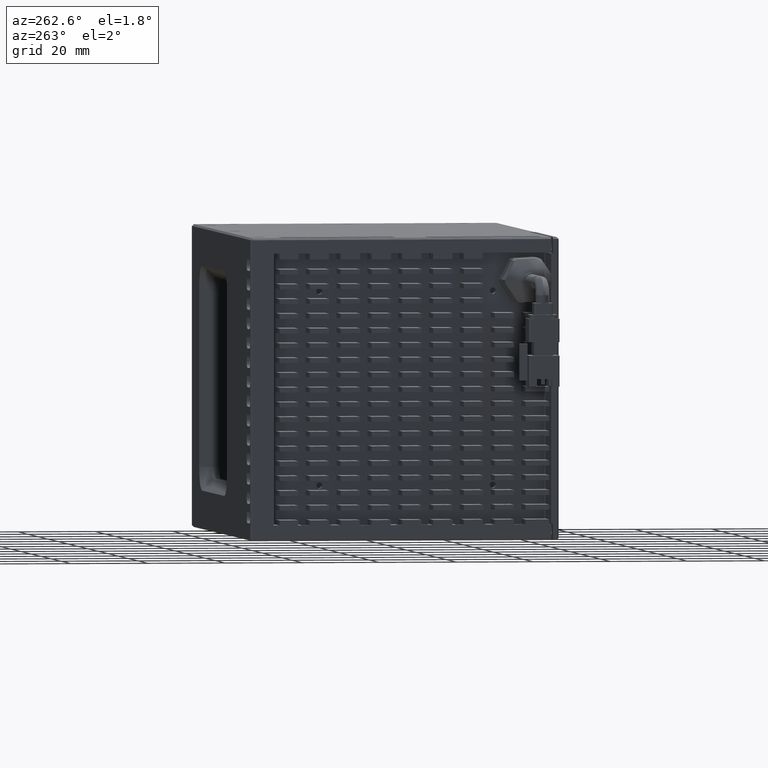
[diagram: clean part render]
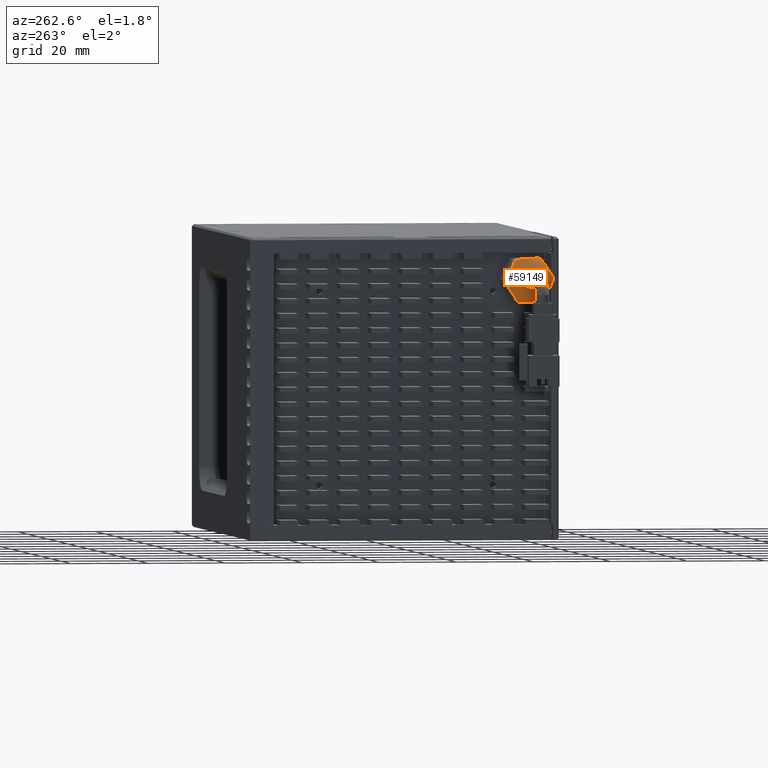
[diagram: same view with one face highlighted and labeled with its STEP entity id]
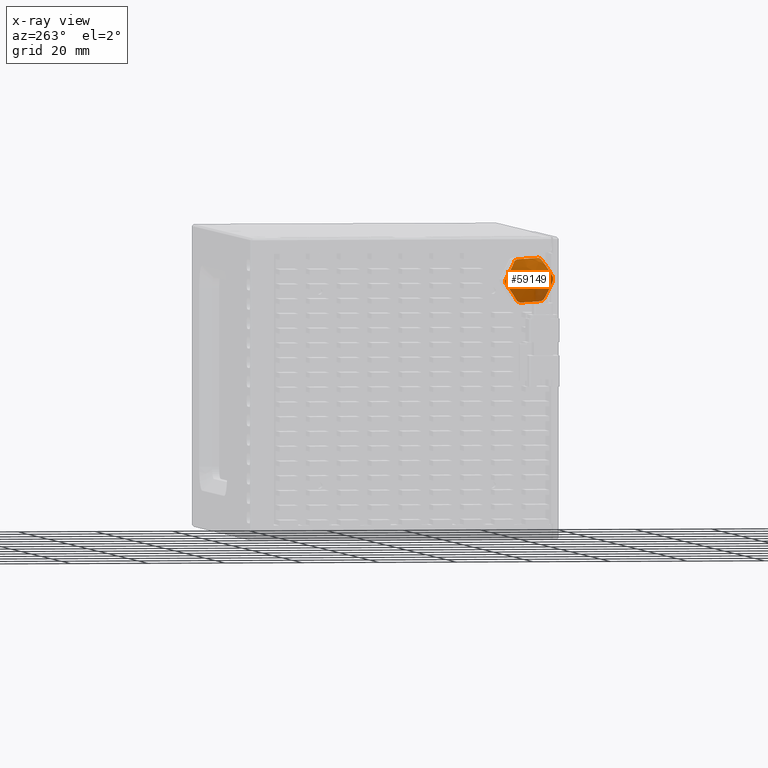
[diagram: x-ray of the same camera — body ghosted, the highlighted face saturated]
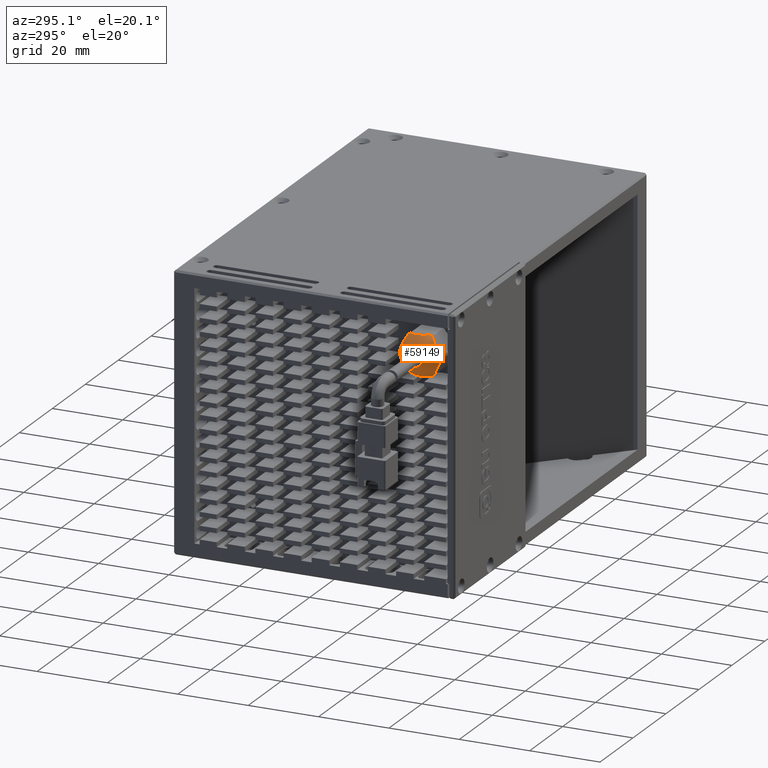
[diagram: same view with one face highlighted and labeled with its STEP entity id]
A machine part, auxiliary view. The second image highlights one B-rep face of the part: STEP entity #59149.
The next image is the same camera in x-ray: the body ghosted, the highlighted face saturated — about 17% of this face is hidden behind the body in this view.
A second angle (auxiliary view) of the same face is appended — the face is thin or edge-on in the first view.
In plain terms, the highlighted face is a freeform B-spline surface patch.
Its self-contained STEP definition (entity closure, byte-faithful):
#215 = EDGE_CURVE ( 'NONE', #26231, #26221, #32173, .T. ) ;
#708 = CARTESIAN_POINT ( 'NONE',  ( -75.85005730159738800, -9.818089248277848600, 67.00000000000957800 ) ) ;
#1711 = DIRECTION ( 'NONE',  ( 0.0000000000000000000, -0.4439600393527282100, 0.8960465855400174800 ) ) ;
#2053 = CARTESIAN_POINT ( 'NONE',  ( -76.65690864948534500, -15.02473585776141000, 69.28411995864213700 ) ) ;
#2189 = CARTESIAN_POINT ( 'NONE',  ( -75.85005730159738800, -9.818089248277848600, 67.00000000000957800 ) ) ;
#2219 = CARTESIAN_POINT ( 'NONE',  ( -75.85005730159738800, -16.06808921387633400, 67.00065575452337900 ) ) ;
#2271 = CARTESIAN_POINT ( 'NONE',  ( -76.75422238075439900, -4.691938422272225600, 69.26761412325878100 ) ) ;
#2654 = CARTESIAN_POINT ( 'NONE',  ( -74.10379265457416400, -9.826900781596521000, 74.02239375570948700 ) ) ;
#2886 = CARTESIAN_POINT ( 'NONE',  ( -83.06947262256238700, -14.42831988906798600, 68.19498467567795800 ) ) ;
#3864 = CARTESIAN_POINT ( 'NONE',  ( -75.99697512316309700, -6.581963477400106100, 61.75485134791938400 ) ) ;
#4051 = CARTESIAN_POINT ( 'NONE',  ( -75.85005730159738800, -12.23197978238103200, 72.76503534156312000 ) ) ;
#4282 = CARTESIAN_POINT ( 'NONE',  ( -76.35171132334807000, -7.544889998957438900, 72.46660227885695300 ) ) ;
#4452 = CARTESIAN_POINT ( 'NONE',  ( -76.65690864948533100, -14.39951846248703200, 63.63297174698492900 ) ) ;
#4470 =( BOUNDED_SURFACE ( )  B_SPLINE_SURFACE ( 3, 3, ( 
 ( #2654, #24749, #63193, #30274 ),
 ( #68746, #35811, #2886, #41337 ),
 ( #8462, #46816, #13964, #52382 ),
 ( #19442, #57915, #24989, #63451 ) ),
 .UNSPECIFIED., .F., .F., .F. ) 
 B_SPLINE_SURFACE_WITH_KNOTS ( ( 4, 4 ),
 ( 4, 4 ),
 ( 0.0000000000000000000, 1.000000000000000000 ),
 ( 0.0000000000000000000, 1.000000000000000000 ),
 .UNSPECIFIED. ) 
 GEOMETRIC_REPRESENTATION_ITEM ( )  RATIONAL_B_SPLINE_SURFACE ( (
 ( 1.000000000000000000, 0.7017694484579010100, 0.7017694484579010100, 1.000000000000000000),
 ( 0.6732171387617810200, 0.4724432201612612800, 0.4724432201612612800, 0.6732171387617810200),
 ( 0.6732171387617810200, 0.4724432201612612800, 0.4724432201612612800, 0.6732171387617810200),
 ( 1.000000000000000000, 0.7017694484579010100, 0.7017694484579010100, 1.000000000000000000) ) ) 
 REPRESENTATION_ITEM ( '' )  SURFACE ( )  );
#4862 = CARTESIAN_POINT ( 'NONE',  ( -76.65690864948517500, -9.192871853003591600, 61.34885178835138900 ) ) ;
#4908 = CARTESIAN_POINT ( 'NONE',  ( -75.85005730159738800, -16.01770157482995700, 67.79202714629809600 ) ) ;
#5591 = DIRECTION ( 'NONE',  ( 1.000000000000000000, -4.890937612370272100E-029, 2.051038353574630100E-029 ) ) ;
#6216 = DIRECTION ( 'NONE',  ( 0.0000000000000000000, 0.4439600393527282600, -0.8960465855400175900 ) ) ;
#6753 = EDGE_CURVE ( 'NONE', #22023, #24756, #29705, .T. ) ;
#7628 = CARTESIAN_POINT ( 'NONE',  ( -76.75381554869540000, -14.61953330542437800, 69.89300282890923200 ) ) ;
#7752 = DIRECTION ( 'NONE',  ( 0.0000000000000000000, 0.4439600393527247100, -0.8960465855400193700 ) ) ;
#7838 = CARTESIAN_POINT ( 'NONE',  ( -76.65755512417865700, -4.365118107905129100, 68.60799118241770600 ) ) ;
#7942 = EDGE_CURVE ( 'NONE', #52637, #41928, #13082, .T. ) ;
#8462 = CARTESIAN_POINT ( 'NONE',  ( -77.06815567162966800, -1.641939032934806300, 67.57180493125960700 ) ) ;
#8508 = CARTESIAN_POINT ( 'NONE',  ( -76.73419157656655900, -4.880704344993992200, 64.31127044654826400 ) ) ;
#9090 = CARTESIAN_POINT ( 'NONE',  ( -79.08198799589982300, -10.70600932698303300, 68.79209317108907800 ) ) ;
#9643 = CARTESIAN_POINT ( 'NONE',  ( -76.14389294472799500, -11.82958220444041500, 72.73941416783715400 ) ) ;
#9882 = CARTESIAN_POINT ( 'NONE',  ( -75.99697512316277000, -6.893720154380086600, 72.42514145347522000 ) ) ;
#10044 = CARTESIAN_POINT ( 'NONE',  ( -76.75381554869528600, -14.72422521989893000, 64.28832888612045300 ) ) ;
#10452 = CARTESIAN_POINT ( 'NONE',  ( -76.75381554869521500, -9.922781162752153600, 61.39532605722008200 ) ) ;
#10616 = CARTESIAN_POINT ( 'NONE',  ( -76.44769987294914400, -6.092057095767582800, 62.49101552578586200 ) ) ;
#11618 = VERTEX_POINT ( 'NONE', #2219 ) ;
#11688 = VERTEX_POINT ( 'NONE', #64482 ) ;
#11767 = VERTEX_POINT ( 'NONE', #31966 ) ;
#12898 = CARTESIAN_POINT ( 'NONE',  ( -76.14389294472809400, -15.79431419853827400, 68.12770308435284500 ) ) ;
#13061 = AXIS2_PLACEMENT_3D ( 'NONE', #19873, #58352, #25402 ) ;
#13082 = CIRCLE ( 'NONE', #18562, 6.249999999999515900 ) ;
#13113 = CARTESIAN_POINT ( 'NONE',  ( -76.14389294472803700, -5.853357254179398300, 71.61171108349331900 ) ) ;
#13134 = CARTESIAN_POINT ( 'NONE',  ( -76.73457749291901600, -14.20670485234773000, 70.51334485782166400 ) ) ;
#13355 = CARTESIAN_POINT ( 'NONE',  ( -76.44769987294911600, -4.050178072075575600, 67.97234626228846800 ) ) ;
#13964 = CARTESIAN_POINT ( 'NONE',  ( -83.06947262256262800, -11.66021118308860100, 62.60809816667423200 ) ) ;
#14402 = AXIS2_PLACEMENT_3D ( 'NONE', #53559, #20642, #59094 ) ;
#14967 = CARTESIAN_POINT ( 'NONE',  ( -76.36751272167669000, -4.084576890544851400, 65.50758169080775400 ) ) ;
#15156 = CARTESIAN_POINT ( 'NONE',  ( -76.59876150532829800, -10.68490941831014900, 72.66653137251083200 ) ) ;
#15271 = CARTESIAN_POINT ( 'NONE',  ( -75.85005730159738800, -3.568089282679255200, 66.99934424549553600 ) ) ;
#15544 = CARTESIAN_POINT ( 'NONE',  ( -76.73457749291890200, -15.05504294943386500, 64.95601982834591600 ) ) ;
#15953 = CARTESIAN_POINT ( 'NONE',  ( -76.73457749291877400, -10.66642734536347200, 61.44267497053317600 ) ) ;
#16018 = CARTESIAN_POINT ( 'NONE',  ( -75.85005730159738800, -13.60381104072746800, 62.02699180474505200 ) ) ;
#16225 = VERTEX_POINT ( 'NONE', #15271 ) ;
#16390 = FACE_BOUND ( 'NONE', #32937, .T. ) ;
#17495 = EDGE_CURVE ( 'NONE', #22023, #11618, #28082, .T. ) ;
#17994 = CIRCLE ( 'NONE', #52496, 1.999999999999998400 ) ;
#18460 = AXIS2_PLACEMENT_3D ( 'NONE', #24850, #63295, #30372 ) ;
#18486 = ORIENTED_EDGE ( 'NONE', *, *, #215, .T. ) ;
#18562 = AXIS2_PLACEMENT_3D ( 'NONE', #38481, #5591, #44041 ) ;
#18603 = CARTESIAN_POINT ( 'NONE',  ( -76.60025685661698000, -13.80461005402773400, 71.11755782121119300 ) ) ;
#18824 = CARTESIAN_POINT ( 'NONE',  ( -76.12654354366910100, -3.751368091434554000, 67.36925670659553600 ) ) ;
#18912 = CIRCLE ( 'NONE', #36816, 6.249999999999514200 ) ;
#19396 = EDGE_CURVE ( 'NONE', #61492, #16225, #66838, .T. ) ;
#19442 = CARTESIAN_POINT ( 'NONE',  ( -74.10379265457440600, -4.236286113132960600, 62.73883050517483900 ) ) ;
#19873 = CARTESIAN_POINT ( 'NONE',  ( -75.85005730159738800, -9.818089248277848600, 67.00000000000957800 ) ) ;
#20343 = DIRECTION ( 'NONE',  ( 1.000000000000000000, -4.890937612370272100E-029, 2.051038353574630100E-029 ) ) ;
#20638 = CARTESIAN_POINT ( 'NONE',  ( -76.73419157656678600, -9.958273602716657200, 72.62026553124482600 ) ) ;
#20642 = DIRECTION ( 'NONE',  ( 1.000000000000000000, -4.890937612370272100E-029, 2.051038353574630100E-029 ) ) ;
#20981 = CARTESIAN_POINT ( 'NONE',  ( -76.14389294472830700, -7.806596292116029900, 61.26058583218100800 ) ) ;
#21049 = CARTESIAN_POINT ( 'NONE',  ( -76.60025685661689500, -15.37725932586498900, 65.60635062011520800 ) ) ;
#21073 = CARTESIAN_POINT ( 'NONE',  ( -75.85005730159738800, -12.94252133100853500, 72.41298662112708900 ) ) ;
#21460 = CARTESIAN_POINT ( 'NONE',  ( -76.60025685661690900, -11.39073852011430300, 61.48879279891314600 ) ) ;
#22009 = CARTESIAN_POINT ( 'NONE',  ( -75.85005730159738800, -7.043339002323511600, 61.39970884038490300 ) ) ;
#22023 = VERTEX_POINT ( 'NONE', #16018 ) ;
#22354 = CIRCLE ( 'NONE', #13061, 6.249999999999514200 ) ;
#22666 = ORIENTED_EDGE ( 'NONE', *, *, #62161, .T. ) ;
#24119 = CARTESIAN_POINT ( 'NONE',  ( -76.36751272167654700, -5.658860900570277700, 71.21915820011759000 ) ) ;
#24145 = CARTESIAN_POINT ( 'NONE',  ( -76.35171132334792800, -13.41570606948550700, 71.70194943720828500 ) ) ;
#24363 = CARTESIAN_POINT ( 'NONE',  ( -75.85005730159738800, -3.568089282679255200, 66.99934424549553600 ) ) ;
#24749 = CARTESIAN_POINT ( 'NONE',  ( -76.56586692776141900, -11.28983948597474900, 73.29755831160703400 ) ) ;
#24756 = VERTEX_POINT ( 'NONE', #62377 ) ;
#24850 = CARTESIAN_POINT ( 'NONE',  ( -75.85005730159738800, -9.818089248277848600, 67.00000000000957800 ) ) ;
#24883 = VERTEX_POINT ( 'NONE', #9090 ) ;
#24989 = CARTESIAN_POINT ( 'NONE',  ( -76.56586692776195900, -8.346339010580814800, 60.70244168841143300 ) ) ;
#25025 = CARTESIAN_POINT ( 'NONE',  ( -76.75422238075428500, -5.291202398560338700, 63.69443022268256300 ) ) ;
#25402 = DIRECTION ( 'NONE',  ( 0.0000000000000000000, 0.4439600393527282600, -0.8960465855400175900 ) ) ;
#25524 = AXIS2_PLACEMENT_3D ( 'NONE', #62574, #29652, #68140 ) ;
#26176 = CARTESIAN_POINT ( 'NONE',  ( -76.75422238075458400, -9.218825271989324200, 72.57318390058496500 ) ) ;
#26221 = VERTEX_POINT ( 'NONE', #65592 ) ;
#26231 = VERTEX_POINT ( 'NONE', #65849 ) ;
#26335 = CARTESIAN_POINT ( 'NONE',  ( -75.85005730159738800, -13.60381104072746800, 62.02699180474505200 ) ) ;
#26570 = CARTESIAN_POINT ( 'NONE',  ( -76.35171132334795600, -15.68890531880590100, 66.23534715836012800 ) ) ;
#26957 = CARTESIAN_POINT ( 'NONE',  ( -76.35171132334814100, -12.09128849759717100, 61.53339772116110100 ) ) ;
#27131 = CARTESIAN_POINT ( 'NONE',  ( -76.35171132334825500, -6.220472427068908200, 62.29805056281093600 ) ) ;
#27423 = EDGE_CURVE ( 'NONE', #24883, #11688, #34596, .T. ) ;
#27975 = EDGE_CURVE ( 'NONE', #35705, #11767, #22354, .T. ) ;
#28047 = ORIENTED_EDGE ( 'NONE', *, *, #17495, .T. ) ;
#28082 = B_SPLINE_CURVE_WITH_KNOTS ( 'NONE', 3,
 ( #26335, #64814, #70316, #37371, #4452, #42942, #10044, #48410, #15544, #53944, #21049, #59476, #26570, #65047, #32073, #70536 ),
 .UNSPECIFIED., .F., .F.,
 ( 4, 2, 2, 2, 2, 2, 2, 4 ),
 ( 3.659238710217230100E-016, 0.001475511169496675900, 0.002213266754244846900, 0.002951022338993018300, 0.003688777923741189700, 0.004426533508489360700, 0.005164289093237532100, 0.005902044677985703600 ),
 .UNSPECIFIED. ) ;
#29255 = FACE_OUTER_BOUND ( 'NONE', #54559, .T. ) ;
#29650 = CARTESIAN_POINT ( 'NONE',  ( -76.65690864948516000, -5.236660034068496100, 70.36702825303390800 ) ) ;
#29652 = DIRECTION ( 'NONE',  ( 1.000000000000000000, -4.890937612370272100E-029, 2.051038353574630100E-029 ) ) ;
#29677 = CARTESIAN_POINT ( 'NONE',  ( -75.99697512316265600, -13.05421501915442300, 72.24514865209964400 ) ) ;
#29705 = CIRCLE ( 'NONE', #18460, 6.249999999999516800 ) ;
#30274 = CARTESIAN_POINT ( 'NONE',  ( -74.10379265457416400, -15.39989238342211100, 71.26116949484385500 ) ) ;
#30372 = DIRECTION ( 'NONE',  ( 0.0000000000000000000, 0.4439600393527200500, -0.8960465855400215900 ) ) ;
#31210 = ORIENTED_EDGE ( 'NONE', *, *, #19396, .T. ) ;
#31269 = CARTESIAN_POINT ( 'NONE',  ( -76.65690864948511800, -4.611442638793816300, 64.71588004137582600 ) ) ;
#31466 = EDGE_CURVE ( 'NONE', #41928, #26221, #18912, .T. ) ;
#31494 = CARTESIAN_POINT ( 'NONE',  ( -76.65755512417857200, -5.699042465064034800, 63.08158405754747400 ) ) ;
#31685 = CARTESIAN_POINT ( 'NONE',  ( -76.65755512417871400, -8.484164891118217300, 72.52640712487934100 ) ) ;
#31947 = CARTESIAN_POINT ( 'NONE',  ( -76.73457749291880200, -5.429473644207075900, 63.48665514219698000 ) ) ;
#31966 = CARTESIAN_POINT ( 'NONE',  ( -75.85005730159738800, -12.23197978238103200, 72.76503534156312000 ) ) ;
#32073 = CARTESIAN_POINT ( 'NONE',  ( -75.99697512316277000, -15.97858411305205800, 66.82000719863323500 ) ) ;
#32173 = B_SPLINE_CURVE_WITH_KNOTS ( 'NONE', 3,
 ( #52882, #52425, #14967, #46620, #31269, #8508, #37951, #25025, #31947, #31494, #64921, #10616, #27131, #32413, #3864, #47794 ),
 .UNSPECIFIED., .F., .F.,
 ( 4, 2, 2, 2, 2, 2, 2, 4 ),
 ( 3.503886463667254900E-016, 0.001475511169496304000, 0.002213266754244273600, 0.002951022338992243300, 0.003688777923740212600, 0.004426533508488182000, 0.005164289093236152200, 0.005902044677984121500 ),
 .UNSPECIFIED. ) ;
#32413 = CARTESIAN_POINT ( 'NONE',  ( -76.12654354366925700, -6.464942981434163000, 61.93069371380003900 ) ) ;
#32484 = CARTESIAN_POINT ( 'NONE',  ( -75.99697512316296900, -12.74245834217448700, 61.57485854654284900 ) ) ;
#32628 = CIRCLE ( 'NONE', #25524, 6.249999999999514200 ) ;
#32632 = CARTESIAN_POINT ( 'NONE',  ( -75.85005730159738800, -6.692521365409997500, 72.41233086661223700 ) ) ;
#32937 = EDGE_LOOP ( 'NONE', ( #56770, #22666 ) ) ;
#33238 = ORIENTED_EDGE ( 'NONE', *, *, #6753, .F. ) ;
#34596 = CIRCLE ( 'NONE', #38253, 1.999999999999998400 ) ;
#34608 = DIRECTION ( 'NONE',  ( 1.000000000000000000, -4.890937612370272100E-029, 2.051038353574630100E-029 ) ) ;
#34966 = CARTESIAN_POINT ( 'NONE',  ( -76.59876150532839700, -15.15885945322166600, 69.08257739849935300 ) ) ;
#35180 = CARTESIAN_POINT ( 'NONE',  ( -76.75381554869520100, -4.911953276656611900, 69.71167111389840400 ) ) ;
#35705 = VERTEX_POINT ( 'NONE', #21073 ) ;
#35811 = CARTESIAN_POINT ( 'NONE',  ( -83.06947262256238700, -7.975967313467037000, 71.39190183334459100 ) ) ;
#36136 = EDGE_CURVE ( 'NONE', #61492, #70843, #41445, .T. ) ;
#36816 = AXIS2_PLACEMENT_3D ( 'NONE', #708, #39080, #6216 ) ;
#37222 = CARTESIAN_POINT ( 'NONE',  ( -76.44769987294903000, -7.776210224584779100, 72.48133073651186500 ) ) ;
#37371 = CARTESIAN_POINT ( 'NONE',  ( -76.59876150532845400, -14.29203928318970400, 63.41604602599807100 ) ) ;
#37779 = CARTESIAN_POINT ( 'NONE',  ( -76.59876150532831200, -8.951269078246145500, 61.33346862750728700 ) ) ;
#37951 = CARTESIAN_POINT ( 'NONE',  ( -76.75381554869513000, -5.016645191130634500, 64.10699717110908600 ) ) ;
#38253 = AXIS2_PLACEMENT_3D ( 'NONE', #67583, #34608, #1711 ) ;
#38481 = CARTESIAN_POINT ( 'NONE',  ( -75.85005730159738800, -9.818089248277848600, 67.00000000000957800 ) ) ;
#39080 = DIRECTION ( 'NONE',  ( 1.000000000000000000, -4.890937612370272100E-029, 2.051038353574630100E-029 ) ) ;
#40474 = CARTESIAN_POINT ( 'NONE',  ( -76.73419157656680100, -14.75547415156109200, 69.68872955346989800 ) ) ;
#40601 = DIRECTION ( 'NONE',  ( 1.000000000000000000, -4.890937612370272100E-029, 2.051038353574630100E-029 ) ) ;
#40698 = CARTESIAN_POINT ( 'NONE',  ( -76.73457749291895900, -4.581135547121684600, 69.04398017167294200 ) ) ;
#41229 = EDGE_CURVE ( 'NONE', #11767, #70843, #68215, .T. ) ;
#41337 = CARTESIAN_POINT ( 'NONE',  ( -77.06815567162952600, -17.99423946362058400, 66.42819506875932200 ) ) ;
#41445 = CIRCLE ( 'NONE', #14402, 6.249999999999519500 ) ;
#41928 = VERTEX_POINT ( 'NONE', #22009 ) ;
#42168 = EDGE_CURVE ( 'NONE', #53862, #11618, #32628, .T. ) ;
#42428 = ORIENTED_EDGE ( 'NONE', *, *, #42168, .F. ) ;
#42694 = AXIS2_PLACEMENT_3D ( 'NONE', #2189, #40601, #7752 ) ;
#42790 = CARTESIAN_POINT ( 'NONE',  ( -76.12654354366881600, -7.104514358276995600, 72.43856299280481900 ) ) ;
#42942 = CARTESIAN_POINT ( 'NONE',  ( -76.73419157656673000, -14.61528979712260300, 64.06846402223449400 ) ) ;
#43073 = ORIENTED_EDGE ( 'NONE', *, *, #41229, .T. ) ;
#43341 = CARTESIAN_POINT ( 'NONE',  ( -76.73419157656660200, -9.677904893839278000, 61.37973446877331400 ) ) ;
#44041 = DIRECTION ( 'NONE',  ( 0.0000000000000000000, 0.4439600393527128900, -0.8960465855400251400 ) ) ;
#44467 = EDGE_CURVE ( 'NONE', #26231, #16225, #64681, .T. ) ;
#44901 = ORIENTED_EDGE ( 'NONE', *, *, #44467, .F. ) ;
#46001 = CARTESIAN_POINT ( 'NONE',  ( -76.75422238075449900, -14.34497609799451100, 70.30556977733591900 ) ) ;
#46209 = CARTESIAN_POINT ( 'NONE',  ( -76.60025685661703700, -4.258919170690570700, 68.39364937990360700 ) ) ;
#46620 = CARTESIAN_POINT ( 'NONE',  ( -76.59876150532825500, -4.477319043333601200, 64.91742260151853800 ) ) ;
#46816 = CARTESIAN_POINT ( 'NONE',  ( -83.06947262256265700, -5.207858607487499300, 65.80501532434092800 ) ) ;
#47474 = CARTESIAN_POINT ( 'NONE',  ( -75.85005730159738800, -6.032367455828099500, 71.97300819527390600 ) ) ;
#47794 = CARTESIAN_POINT ( 'NONE',  ( -75.85005730159738800, -6.693657165545441300, 61.58701337889276300 ) ) ;
#48002 = CARTESIAN_POINT ( 'NONE',  ( -76.36751272167650500, -11.39237325830364400, 72.71157650931827700 ) ) ;
#48240 = CARTESIAN_POINT ( 'NONE',  ( -75.85005730159738800, -6.692521365409997500, 72.41233086661223700 ) ) ;
#48410 = CARTESIAN_POINT ( 'NONE',  ( -76.75422238075435600, -14.94424007428330700, 64.73238587676006300 ) ) ;
#48829 = CARTESIAN_POINT ( 'NONE',  ( -76.75422238075431400, -10.41735322456618100, 61.42681609943306900 ) ) ;
#49331 = ORIENTED_EDGE ( 'NONE', *, *, #60571, .T. ) ;
#51296 = CARTESIAN_POINT ( 'NONE',  ( -75.85005730159738800, -16.01770157482995700, 67.79202714629809600 ) ) ;
#51531 = CARTESIAN_POINT ( 'NONE',  ( -75.85005730159738800, -6.032367455828099500, 71.97300819527390600 ) ) ;
#51553 = CARTESIAN_POINT ( 'NONE',  ( -76.65755512417865700, -13.93713603149063800, 70.91841594247139800 ) ) ;
#51760 = CARTESIAN_POINT ( 'NONE',  ( -76.35171132334822600, -3.947273177749614600, 67.76465284165865900 ) ) ;
#52382 = CARTESIAN_POINT ( 'NONE',  ( -77.06815567162965400, -15.22613075764127400, 60.84130855975554700 ) ) ;
#52425 = CARTESIAN_POINT ( 'NONE',  ( -76.14389294472822200, -3.841864298017225700, 65.87229691566466300 ) ) ;
#52496 = AXIS2_PLACEMENT_3D ( 'NONE', #53276, #20343, #58807 ) ;
#52637 = VERTEX_POINT ( 'NONE', #63253 ) ;
#52728 = B_SPLINE_CURVE_WITH_KNOTS ( 'NONE', 3,
 ( #65229, #20981, #70717, #37779, #4862, #43341, #10452, #48829, #15953, #54359, #21460, #59882, #26957, #65467, #32484, #70961 ),
 .UNSPECIFIED., .F., .F.,
 ( 4, 2, 2, 2, 2, 2, 2, 4 ),
 ( 4.686266453758421300E-016, 0.001475511169496403100, 0.002213266754244369800, 0.002951022338992336600, 0.003688777923740303300, 0.004426533508488268700, 0.005164289093236235400, 0.005902044677984202200 ),
 .UNSPECIFIED. ) ;
#52882 = CARTESIAN_POINT ( 'NONE',  ( -75.85005730159738800, -3.618476921725866500, 66.20797285371894200 ) ) ;
#53276 = CARTESIAN_POINT ( 'NONE',  ( -79.08198799589982300, -9.818089248277576800, 67.00000000000903800 ) ) ;
#53556 = CARTESIAN_POINT ( 'NONE',  ( -76.65690864948523100, -10.44330664355259600, 72.65114821166672200 ) ) ;
#53559 = CARTESIAN_POINT ( 'NONE',  ( -75.85005730159738800, -9.818089248277848600, 67.00000000000957800 ) ) ;
#53862 = VERTEX_POINT ( 'NONE', #4908 ) ;
#53944 = CARTESIAN_POINT ( 'NONE',  ( -76.65755512417857200, -15.27106038865041900, 65.39200881760110900 ) ) ;
#54359 = CARTESIAN_POINT ( 'NONE',  ( -76.65755512417852900, -11.15201360543692000, 61.47359287513879200 ) ) ;
#54559 = EDGE_LOOP ( 'NONE', ( #44901, #18486, #58943, #57740, #49331, #33238, #28047, #42428, #67462, #56703, #43073, #60318, #31210 ) ) ;
#56703 = ORIENTED_EDGE ( 'NONE', *, *, #27975, .T. ) ;
#56770 = ORIENTED_EDGE ( 'NONE', *, *, #27423, .T. ) ;
#57094 = CARTESIAN_POINT ( 'NONE',  ( -76.44769987294888800, -13.54412140078687600, 71.50898447423324500 ) ) ;
#57303 = CARTESIAN_POINT ( 'NONE',  ( -75.99697512316299700, -3.657594383503355300, 67.17999280138532500 ) ) ;
#57740 = ORIENTED_EDGE ( 'NONE', *, *, #7942, .F. ) ;
#57915 = CARTESIAN_POINT ( 'NONE',  ( -76.56586692776194500, -5.699224817511364400, 62.01399506107230100 ) ) ;
#58352 = DIRECTION ( 'NONE',  ( -1.000000000000000000, 4.890937612370272100E-029, -2.051038353574630100E-029 ) ) ;
#58807 = DIRECTION ( 'NONE',  ( 0.0000000000000000000, -0.4439600393527282100, 0.8960465855400174800 ) ) ;
#58943 = ORIENTED_EDGE ( 'NONE', *, *, #31466, .F. ) ;
#59090 = CARTESIAN_POINT ( 'NONE',  ( -76.75381554869544200, -9.713397333803632300, 72.60467394279800100 ) ) ;
#59094 = DIRECTION ( 'NONE',  ( 0.0000000000000000000, 0.4439600393527407000, -0.8960465855400112600 ) ) ;
#59149 = ADVANCED_FACE ( 'NONE', ( #16390, #29255 ), #4470, .T. ) ;
#59476 = CARTESIAN_POINT ( 'NONE',  ( -76.44769987294887400, -15.58600042447997900, 66.02765373773031900 ) ) ;
#59882 = CARTESIAN_POINT ( 'NONE',  ( -76.44769987294898800, -11.85996827196995300, 61.51866926350621900 ) ) ;
#60318 = ORIENTED_EDGE ( 'NONE', *, *, #36136, .F. ) ;
#60571 = EDGE_CURVE ( 'NONE', #52637, #24756, #52728, .T. ) ;
#61492 = VERTEX_POINT ( 'NONE', #47474 ) ;
#61830 = EDGE_CURVE ( 'NONE', #53862, #35705, #69315, .T. ) ;
#62161 = EDGE_CURVE ( 'NONE', #11688, #24883, #17994, .T. ) ;
#62377 = CARTESIAN_POINT ( 'NONE',  ( -75.85005730159738800, -12.94365713114399000, 61.58766913340578200 ) ) ;
#62571 = CARTESIAN_POINT ( 'NONE',  ( -76.59876150532824100, -5.344139213365808800, 70.58395397402075800 ) ) ;
#62574 = CARTESIAN_POINT ( 'NONE',  ( -75.85005730159738800, -9.818089248277848600, 67.00000000000957800 ) ) ;
#62596 = CARTESIAN_POINT ( 'NONE',  ( -76.12654354366866000, -13.17123551512016800, 72.06930628621934400 ) ) ;
#63193 = CARTESIAN_POINT ( 'NONE',  ( -76.56586692776141900, -13.93695367904388500, 71.98600493894630900 ) ) ;
#63253 = CARTESIAN_POINT ( 'NONE',  ( -75.85005730159738800, -7.404198714176359000, 61.23496465845508400 ) ) ;
#63295 = DIRECTION ( 'NONE',  ( 1.000000000000000000, -4.890937612370272100E-029, 2.051038353574630100E-029 ) ) ;
#63451 = CARTESIAN_POINT ( 'NONE',  ( -74.10379265457439100, -9.809277714959208100, 59.97760624430888800 ) ) ;
#64482 = CARTESIAN_POINT ( 'NONE',  ( -79.08198799589982300, -8.930169169572121000, 65.20790682892899800 ) ) ;
#64645 = CARTESIAN_POINT ( 'NONE',  ( -76.73457749291901600, -8.969751151191921700, 72.55732502948490000 ) ) ;
#64681 = CIRCLE ( 'NONE', #42694, 6.249999999999517700 ) ;
#64814 = CARTESIAN_POINT ( 'NONE',  ( -76.14389294472826500, -13.78282124237601100, 62.38828891652531900 ) ) ;
#64921 = CARTESIAN_POINT ( 'NONE',  ( -76.60025685661700800, -5.831568442526862100, 62.88244217880780000 ) ) ;
#65047 = CARTESIAN_POINT ( 'NONE',  ( -76.12654354366877400, -15.88481040512094600, 66.63074329342315100 ) ) ;
#65229 = CARTESIAN_POINT ( 'NONE',  ( -75.85005730159738800, -7.404198714176359000, 61.23496465845508400 ) ) ;
#65467 = CARTESIAN_POINT ( 'NONE',  ( -76.12654354366910100, -12.53166413827742300, 61.56143700721322900 ) ) ;
#65592 = CARTESIAN_POINT ( 'NONE',  ( -75.85005730159738800, -6.693657165545441300, 61.58701337889276300 ) ) ;
#65849 = CARTESIAN_POINT ( 'NONE',  ( -75.85005730159738800, -3.618476921725866500, 66.20797285371894200 ) ) ;
#66838 = B_SPLINE_CURVE_WITH_KNOTS ( 'NONE', 3,
 ( #51531, #13113, #24119, #62571, #29650, #68135, #35180, #2271, #40698, #7838, #46209, #13355, #51760, #18824, #57303, #24363 ),
 .UNSPECIFIED., .F., .F.,
 ( 4, 2, 2, 2, 2, 2, 2, 4 ),
 ( 1.552456366365360800E-016, 0.001475511169496506100, 0.002213266754244681700, 0.002951022338992857000, 0.003688777923741031900, 0.004426533508489208100, 0.005164289093237383000, 0.005902044677985557000 ),
 .UNSPECIFIED. ) ;
#67462 = ORIENTED_EDGE ( 'NONE', *, *, #61830, .T. ) ;
#67583 = CARTESIAN_POINT ( 'NONE',  ( -79.08198799589982300, -9.818089248277576800, 67.00000000000903800 ) ) ;
#67918 = CARTESIAN_POINT ( 'NONE',  ( -76.36751272167666100, -15.55160160601062100, 68.49241830920981000 ) ) ;
#68135 = CARTESIAN_POINT ( 'NONE',  ( -76.73419157656663000, -5.020888699432928700, 69.93153597778435000 ) ) ;
#68140 = DIRECTION ( 'NONE',  ( 0.0000000000000000000, 0.4439600393527147200, -0.8960465855400242500 ) ) ;
#68157 = CARTESIAN_POINT ( 'NONE',  ( -75.85005730159738800, -12.94252133100853500, 72.41298662112708900 ) ) ;
#68215 = B_SPLINE_CURVE_WITH_KNOTS ( 'NONE', 3,
 ( #4051, #9643, #48002, #15156, #53556, #20638, #59090, #26176, #64645, #31685, #70130, #37222, #4282, #42790, #9882, #48240 ),
 .UNSPECIFIED., .F., .F.,
 ( 4, 2, 2, 2, 2, 2, 2, 4 ),
 ( 2.221529986854170700E-017, 0.001475511169496778900, 0.002213266754245153900, 0.002951022338993528800, 0.003688777923741902700, 0.004426533508490278400, 0.005164289093238651900, 0.005902044677987026300 ),
 .UNSPECIFIED. ) ;
#68746 = CARTESIAN_POINT ( 'NONE',  ( -77.06815567162952600, -4.410047738914443000, 73.15869144026324000 ) ) ;
#69315 = B_SPLINE_CURVE_WITH_KNOTS ( 'NONE', 3,
 ( #51296, #12898, #67918, #34966, #2053, #40474, #7628, #46001, #13134, #51553, #18603, #57094, #24145, #62596, #29677, #68157 ),
 .UNSPECIFIED., .F., .F.,
 ( 4, 2, 2, 2, 2, 2, 2, 4 ),
 ( 1.316562550716262900E-016, 0.001475511169496855000, 0.002213266754245232900, 0.002951022338993611200, 0.003688777923741989000, 0.004426533508490366900, 0.005164289093238745600, 0.005902044677987123400 ),
 .UNSPECIFIED. ) ;
#70130 = CARTESIAN_POINT ( 'NONE',  ( -76.60025685661706500, -8.245439976440694700, 72.51120720110499500 ) ) ;
#70316 = CARTESIAN_POINT ( 'NONE',  ( -76.36751272167691700, -13.97731759598522000, 62.78084179990123200 ) ) ;
#70536 = CARTESIAN_POINT ( 'NONE',  ( -75.85005730159738800, -16.06808921387633400, 67.00065575452337900 ) ) ;
#70717 = CARTESIAN_POINT ( 'NONE',  ( -76.36751272167683200, -8.243805238252994300, 61.28842349069988400 ) ) ;
#70843 = VERTEX_POINT ( 'NONE', #32632 ) ;
#70961 = CARTESIAN_POINT ( 'NONE',  ( -75.85005730159738800, -12.94365713114399000, 61.58766913340578200 ) ) ;